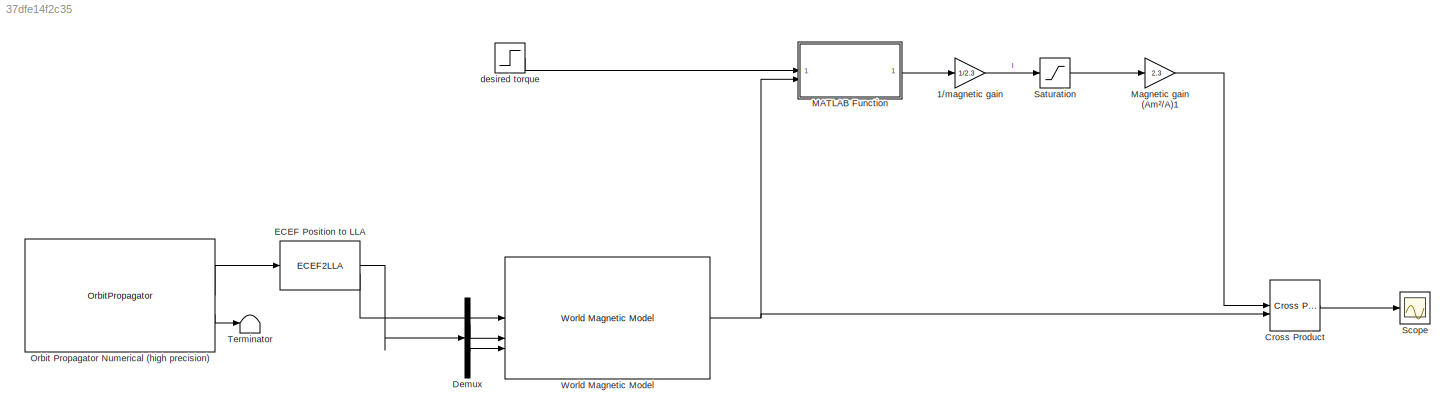
MODEL slx_37dfe14f2c35
KIND model
CONFIG AbsTol = auto
CONFIG EnableMultiTasking = off
CONFIG FixedStep = auto
CONFIG MaxStep = auto
CONFIG MinStep = auto
CONFIG RelTol = 1e-3
CONFIG SampleTimeConstraint = Unconstrained
CONFIG SolverName = FixedStepAuto
CONFIG StartTime = 0.0
CONFIG StopTime = 100
BLOCK [Gain] 1//magnetic gain
  Gain = 1/2.3
BLOCK [Reference] Cross Product  REF=matrix_library/Cross Product
  LibrarySourceBlock = simulink/Matrix\nOperations/Cross Product
  SourceBlock = matrix_library/Cross Product
  SourceType = CrossProduct
BLOCK [Demux] Demux
  Outputs = 2
BLOCK [ECEF2LLA] ECEF Position to LLA
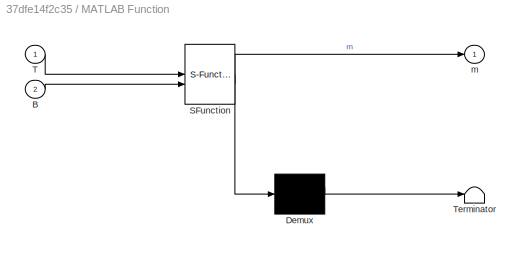
BLOCK [SubSystem] MATLAB Function
  ErrorFcn = Stateflow.Translate.translate
  PermitHierarchicalResolution = ExplicitOnly
  SFBlockType = MATLAB Function
  TreatAsAtomicUnit = on
BLOCK [Demux] MATLAB Function/ Demux 
  Outputs = 1
BLOCK [S-Function] MATLAB Function/ SFunction 
  EnableBusSupport = off
  FunctionName = sf_sfun
  PortCounts = [2 2]
  SFcnIsStateOwnerBlock = off
  SFunctionDeploymentMode = off
  Tag = Stateflow S-Function 2
BLOCK [Terminator] MATLAB Function/ Terminator 
BLOCK [Inport] MATLAB Function/B
  Port = 2
BLOCK [Inport] MATLAB Function/T
BLOCK [Outport] MATLAB Function/m
BLOCK [Gain] Magnetic gain (Am²//A)1
  Gain = 2.3
BLOCK [OrbitPropagator] Orbit Propagator Numerical (high precision)
  customJ2 = 1.0826269e-03
  customMu = 4.305e13
  customOmega = 4.06125949e-3
  customR = 3396200
  dateOut = off
  fixedPosition = [-4142689.0 -2676864.7 -4669861.6]
  fixedVelocity = [1452.7 -6720.7 2568.1]
  inertialPosition = [3649700.0 3308200.0 -4676600.0]
  inertialVelocity = [-2750.8 6666.4 2573.4]
  outportFrame = Fixed-frame
  propagator = Numerical (high precision)
  startDate = juliandate(2025, 1, 1, 12, 0, 0)
BLOCK [Saturate] Saturation
  LowerLimit = -84e-3
  UpperLimit = 84e-3
BLOCK [Scope] Scope
  ActiveDisplayYMaximum = 14.85447556721385
  ActiveDisplayYMinimum = -1.9768714932853444
  Floating = off
  GraphicalSettings = {"Style":{"BackgroundColor":[0.12941176470588237,0.12941176470588237,0.12941176470588237],"AxesColor":[0.07058823529411765,0.07058823529411765,0.07058823529411765],"LabelsColor":[0.8509803921568627,0.8509803921568627,0.8509803921568627],"PreserveColors":false,"Visible":[true,true,true],"LineStyle":["-","-","-"],"LineWidth":[1.5,1.5,1.5],"BarWidth":[0.9,0.9,0.9],"LineColor":["auto","auto","auto"],"...<+2274ch>
  MultipleDisplayCache = [{"MaxYLimMag":12.603514190310731,"MaxYLimReal":14.85447556721385,"MinYLimMag":0,"MinYLimReal":-1.9768714932853444,"PlotAsMagnitudePhase":false,"ShowGrid":true,"ShowLegend":false,"Title":"%<SignalLabel>","YLabel":""}]
  NumInputPorts = 1
  ScopeFrameLocation = window
  WasSavedAsWebScope = on
  WindowPosition = [488.000000,222.000000,560.000000,420.000000,]
BLOCK [Terminator] Terminator
BLOCK [Reference] World Magnetic Model  REF=aerolibgravity2/World Magnetic Model
  AttributesFormatString = %<model>
  SourceBlock = aerolibgravity2/World Magnetic Model
  SourceType = WorldMagneticModel
BLOCK [Step] desired torque
  SampleTime = 0
LINE 1//magnetic gain:1 -> Saturation:1
LINE Cross Product:1 -> Scope:1
LINE Demux:1 -> World Magnetic Model:2
LINE Demux:2 -> World Magnetic Model:3
LINE ECEF Position to LLA:1 -> Demux:1
LINE ECEF Position to LLA:2 -> World Magnetic Model:1
LINE MATLAB Function:1 -> 1//magnetic gain:1
LINE Magnetic gain (Am²//A)1:1 -> Cross Product:1
LINE Orbit Propagator Numerical (high precision):1 -> ECEF Position to LLA:1
LINE Orbit Propagator Numerical (high precision):2 -> Terminator:1
LINE Saturation:1 -> Magnetic gain (Am²//A)1:1
NET World Magnetic Model:1 -> Cross Product:2, MATLAB Function:2
LINE desired torque:1 -> MATLAB Function:1
note: NET lines group one-source signal fan-out (src -> all destinations, sorted); 1:1 wires keep LINE
CHART MATLAB Function states=1 transitions=1
  STATE_LABEL 'eML_blk_kernel()'
  STATE_LABEL 'SCRIPT:\nfunction m = MagControl(T, B)\n\nm = 1/(norm(B)^2) * cross(T, -B);\n'
CHART  states=0 transitions=0
